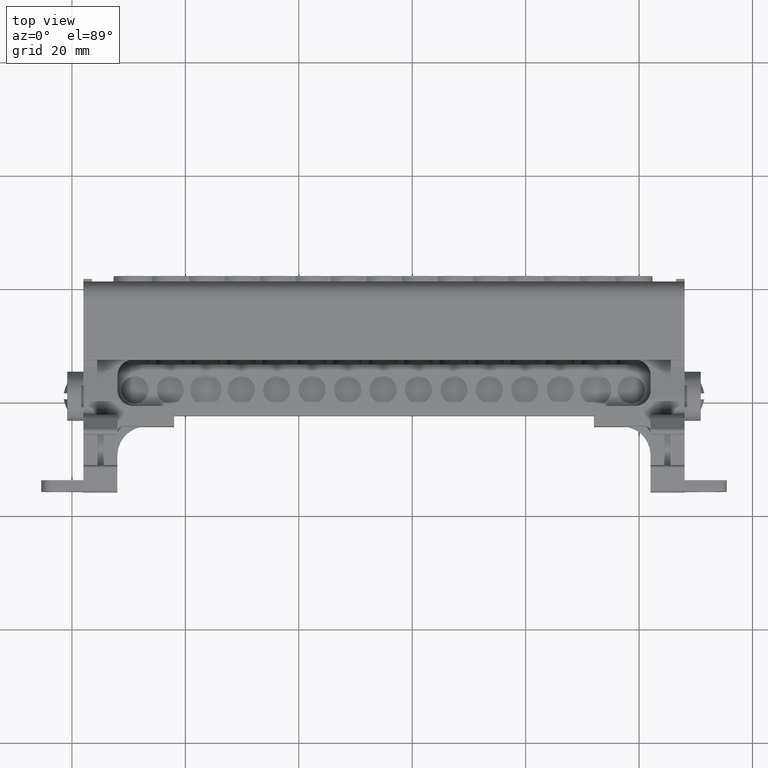
[diagram: clean part render]
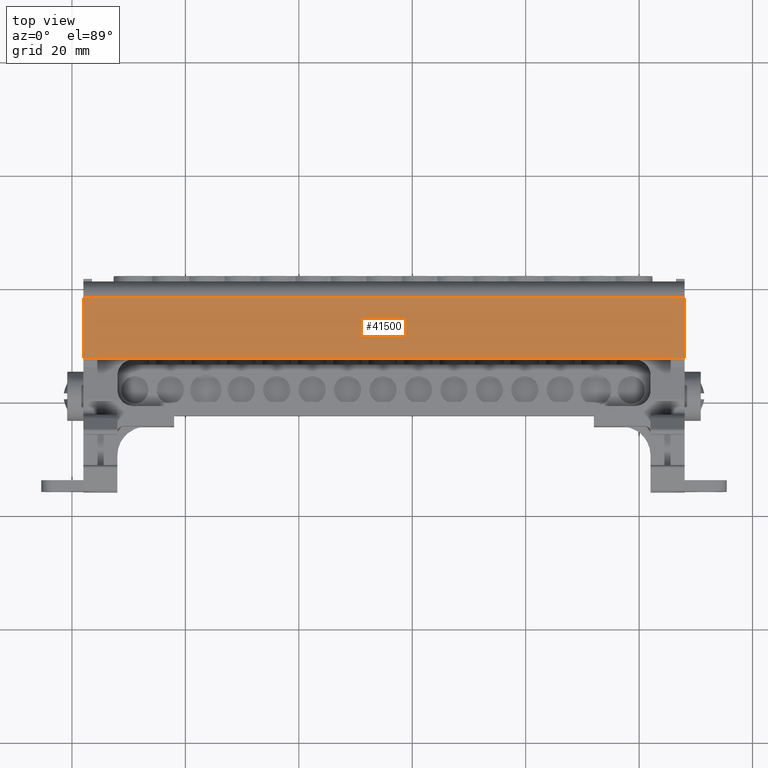
[diagram: same view with one face highlighted and labeled with its STEP entity id]
A machine part, top view. The second image highlights one B-rep face of the part: STEP entity #41500.
In plain terms, the highlighted planar face has unit normal (0, 0.0175, 0.9998).
Its self-contained STEP definition (entity closure, byte-faithful):
#243 = VECTOR ( 'NONE', #21639, 1000.000000000000100 ) ;
#250 = VECTOR ( 'NONE', #21567, 1000.000000000000100 ) ;
#459 = VECTOR ( 'NONE', #13599, 1000.000000000000000 ) ;
#533 = VECTOR ( 'NONE', #13684, 1000.000000000000000 ) ;
#9319 = VERTEX_POINT ( 'NONE', #16114 ) ;
#9331 = VERTEX_POINT ( 'NONE', #16130 ) ;
#10944 = EDGE_LOOP ( 'NONE', ( #21452, #21482, #21478, #21450 ) ) ;
#11677 = AXIS2_PLACEMENT_3D ( 'NONE', #34960, #34972, #34974 ) ;
#13575 = CARTESIAN_POINT ( 'NONE',  ( -373.4252350520591800, -101.8332255118289100, 148.1632083115803500 ) ) ;
#13594 = LINE ( 'NONE', #13575, #459 ) ;
#13599 = DIRECTION ( 'NONE',  ( 1.000000000000000000, 1.094038394468816000E-014, -1.161753797936259400E-014 ) ) ;
#13643 = LINE ( 'NONE', #13647, #533 ) ;
#13647 = CARTESIAN_POINT ( 'NONE',  ( -373.4252350520587200, -112.4655957814302800, 148.3487970249759700 ) ) ;
#13684 = DIRECTION ( 'NONE',  ( -1.000000000000000000, -1.094038394468816000E-014, 1.161753797936259400E-014 ) ) ;
#16114 = CARTESIAN_POINT ( 'NONE',  ( -191.9827637199370800, -112.4655957814283100, 148.3487970249738600 ) ) ;
#16130 = CARTESIAN_POINT ( 'NONE',  ( -191.9827637199368600, -101.8332255118269200, 148.1632083115782200 ) ) ;
#19612 = VERTEX_POINT ( 'NONE', #23363 ) ;
#19613 = VERTEX_POINT ( 'NONE', #23359 ) ;
#21450 = ORIENTED_EDGE ( 'NONE', *, *, #24116, .F. ) ;
#21452 = ORIENTED_EDGE ( 'NONE', *, *, #24221, .F. ) ;
#21478 = ORIENTED_EDGE ( 'NONE', *, *, #24201, .F. ) ;
#21482 = ORIENTED_EDGE ( 'NONE', *, *, #24081, .T. ) ;
#21525 = LINE ( 'NONE', #21536, #250 ) ;
#21536 = CARTESIAN_POINT ( 'NONE',  ( -191.9827637199372800, -121.1504238520334100, 148.5003912628363300 ) ) ;
#21567 = DIRECTION ( 'NONE',  ( 2.118343121632480900E-014, 0.9998476951563920500, -0.01745240643723612900 ) ) ;
#21639 = DIRECTION ( 'NONE',  ( -1.114248099693336700E-014, 0.9998476951563920500, -0.01745240643723612900 ) ) ;
#21643 = LINE ( 'NONE', #21662, #243 ) ;
#21662 = CARTESIAN_POINT ( 'NONE',  ( -297.9752350520587400, -112.4655957814267100, 148.3487970249750800 ) ) ;
#23359 = CARTESIAN_POINT ( 'NONE',  ( -297.9752350520587400, -112.4655957814294700, 148.3487970249750800 ) ) ;
#23363 = CARTESIAN_POINT ( 'NONE',  ( -297.9752350520588500, -101.8332255118280900, 148.1632083115794400 ) ) ;
#24081 = EDGE_CURVE ( 'NONE', #9319, #9331, #21525, .T. ) ;
#24116 = EDGE_CURVE ( 'NONE', #19613, #19612, #21643, .T. ) ;
#24201 = EDGE_CURVE ( 'NONE', #19612, #9331, #13594, .T. ) ;
#24221 = EDGE_CURVE ( 'NONE', #9319, #19613, #13643, .T. ) ;
#34948 = FACE_OUTER_BOUND ( 'NONE', #10944, .T. ) ;
#34960 = CARTESIAN_POINT ( 'NONE',  ( -373.4252350520587200, -112.4655957814275400, 148.3487970249759700 ) ) ;
#34972 = DIRECTION ( 'NONE',  ( 1.142483254487542800E-014, 0.01745240643723611200, 0.9998476951563920500 ) ) ;
#34974 = DIRECTION ( 'NONE',  ( -1.114147166583832100E-014, 0.9998476951563920500, -0.01745240643723611200 ) ) ;
#35002 = PLANE ( 'NONE',  #11677 ) ;
#41500 = ADVANCED_FACE ( 'NONE', ( #34948 ), #35002, .T. ) ;